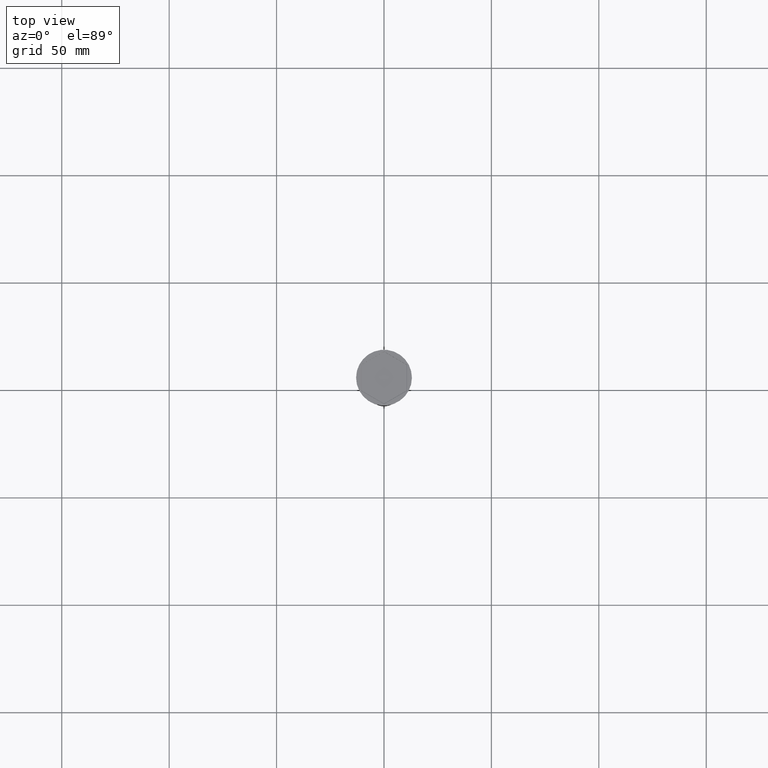
[diagram: clean part render]
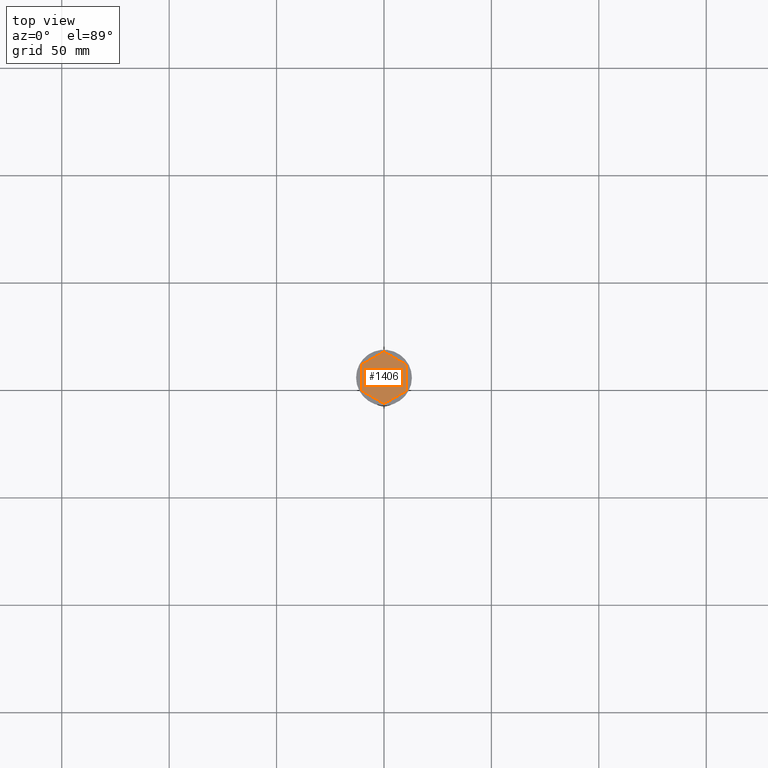
[diagram: same view with one face highlighted and labeled with its STEP entity id]
A machine part, top view. The second image highlights one B-rep face of the part: STEP entity #1406.
In plain terms, the highlighted planar face has unit normal (-0, 0, 1).
Its self-contained STEP definition (entity closure, byte-faithful):
#17 = ORIENTED_EDGE ( 'NONE', *, *, #835, .T. ) ;
#66 = EDGE_CURVE ( 'NONE', #1035, #93, #931, .T. ) ;
#88 = CARTESIAN_POINT ( 'NONE',  ( 10.49999999999999822, 6.062177826491071286, -2.000000000000000000 ) ) ;
#93 = VERTEX_POINT ( 'NONE', #88 ) ;
#96 = ORIENTED_EDGE ( 'NONE', *, *, #497, .T. ) ;
#189 = ORIENTED_EDGE ( 'NONE', *, *, #780, .T. ) ;
#230 = CARTESIAN_POINT ( 'NONE',  ( -5.249999999999998224, -9.093266739736606041, -2.000000000000000000 ) ) ;
#234 = CARTESIAN_POINT ( 'NONE',  ( 0.000000000000000000, -12.12435565298214080, -2.000000000000000000 ) ) ;
#275 = VERTEX_POINT ( 'NONE', #285 ) ;
#285 = CARTESIAN_POINT ( 'NONE',  ( -10.49999999999999822, -6.062177826491072175, -2.000000000000000000 ) ) ;
#308 = PLANE ( 'NONE',  #1543 ) ;
#344 = LINE ( 'NONE', #502, #552 ) ;
#352 = ORIENTED_EDGE ( 'NONE', *, *, #66, .T. ) ;
#378 = LINE ( 'NONE', #606, #1339 ) ;
#401 = VERTEX_POINT ( 'NONE', #868 ) ;
#413 = CARTESIAN_POINT ( 'NONE',  ( 10.49999999999999822, -6.062177826491069510, -2.000000000000000000 ) ) ;
#431 = DIRECTION ( 'NONE',  ( 1.000000000000000000, 0.000000000000000000, 0.000000000000000000 ) ) ;
#432 = VERTEX_POINT ( 'NONE', #234 ) ;
#467 = DIRECTION ( 'NONE',  ( -0.8660254037844387076, 0.4999999999999997224, 0.000000000000000000 ) ) ;
#487 = DIRECTION ( 'NONE',  ( -0.8660254037844387076, -0.5000000000000001110, 0.000000000000000000 ) ) ;
#497 = EDGE_CURVE ( 'NONE', #1526, #275, #665, .T. ) ;
#502 = CARTESIAN_POINT ( 'NONE',  ( -5.249999999999997335, 9.093266739736602489, -2.000000000000000000 ) ) ;
#551 = VECTOR ( 'NONE', #754, 1000.000000000000000 ) ;
#552 = VECTOR ( 'NONE', #487, 999.9999999999998863 ) ;
#576 = CARTESIAN_POINT ( 'NONE',  ( 5.249999999999996447, 9.093266739736606041, -2.000000000000000000 ) ) ;
#606 = CARTESIAN_POINT ( 'NONE',  ( 5.250000000000000000, -9.093266739736604265, -2.000000000000000000 ) ) ;
#613 = DIRECTION ( 'NONE',  ( 0.000000000000000000, 1.000000000000000000, -0.000000000000000000 ) ) ;
#657 = ORIENTED_EDGE ( 'NONE', *, *, #1122, .T. ) ;
#665 = LINE ( 'NONE', #1354, #551 ) ;
#754 = DIRECTION ( 'NONE',  ( 0.000000000000000000, -1.000000000000000000, 0.000000000000000000 ) ) ;
#780 = EDGE_CURVE ( 'NONE', #275, #432, #1463, .T. ) ;
#810 = EDGE_CURVE ( 'NONE', #432, #1035, #378, .T. ) ;
#816 = FACE_OUTER_BOUND ( 'NONE', #916, .T. ) ;
#835 = EDGE_CURVE ( 'NONE', #401, #1526, #344, .T. ) ;
#852 = VECTOR ( 'NONE', #613, 1000.000000000000000 ) ;
#868 = CARTESIAN_POINT ( 'NONE',  ( 0.000000000000000000, 12.12435565298213724, -2.000000000000000000 ) ) ;
#916 = EDGE_LOOP ( 'NONE', ( #657, #17, #96, #189, #1184, #352 ) ) ;
#920 = CARTESIAN_POINT ( 'NONE',  ( 0.000000000000000000, 0.000000000000000000, -2.000000000000000000 ) ) ;
#931 = LINE ( 'NONE', #1410, #852 ) ;
#950 = LINE ( 'NONE', #576, #970 ) ;
#961 = CARTESIAN_POINT ( 'NONE',  ( -10.49999999999999822, 6.062177826491066845, -2.000000000000000000 ) ) ;
#970 = VECTOR ( 'NONE', #467, 1000.000000000000114 ) ;
#1035 = VERTEX_POINT ( 'NONE', #413 ) ;
#1092 = DIRECTION ( 'NONE',  ( 0.8660254037844385966, 0.5000000000000001110, 0.000000000000000000 ) ) ;
#1122 = EDGE_CURVE ( 'NONE', #93, #401, #950, .T. ) ;
#1184 = ORIENTED_EDGE ( 'NONE', *, *, #810, .T. ) ;
#1300 = DIRECTION ( 'NONE',  ( -0.000000000000000000, 0.000000000000000000, 1.000000000000000000 ) ) ;
#1339 = VECTOR ( 'NONE', #1092, 1000.000000000000000 ) ;
#1347 = DIRECTION ( 'NONE',  ( 0.8660254037844387076, -0.4999999999999998890, 0.000000000000000000 ) ) ;
#1354 = CARTESIAN_POINT ( 'NONE',  ( -10.49999999999999822, 0.000000000000000000, -2.000000000000000000 ) ) ;
#1406 = ADVANCED_FACE ( 'NONE', ( #816 ), #308, .T. ) ;
#1410 = CARTESIAN_POINT ( 'NONE',  ( 10.49999999999999822, 0.000000000000000000, -2.000000000000000000 ) ) ;
#1463 = LINE ( 'NONE', #230, #1547 ) ;
#1526 = VERTEX_POINT ( 'NONE', #961 ) ;
#1543 = AXIS2_PLACEMENT_3D ( 'NONE', #920, #1300, #431 ) ;
#1547 = VECTOR ( 'NONE', #1347, 1000.000000000000114 ) ;